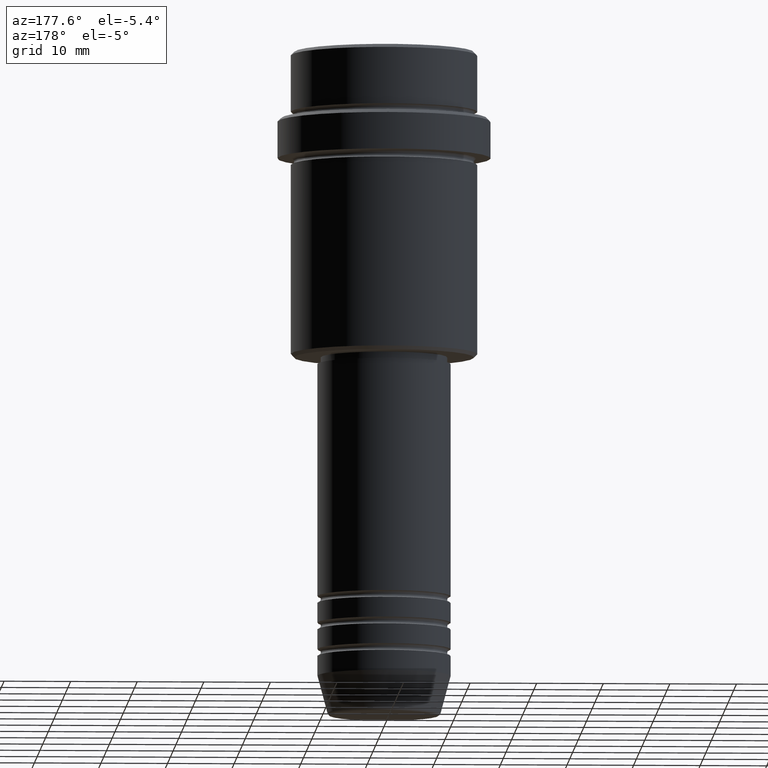
[diagram: clean part render]
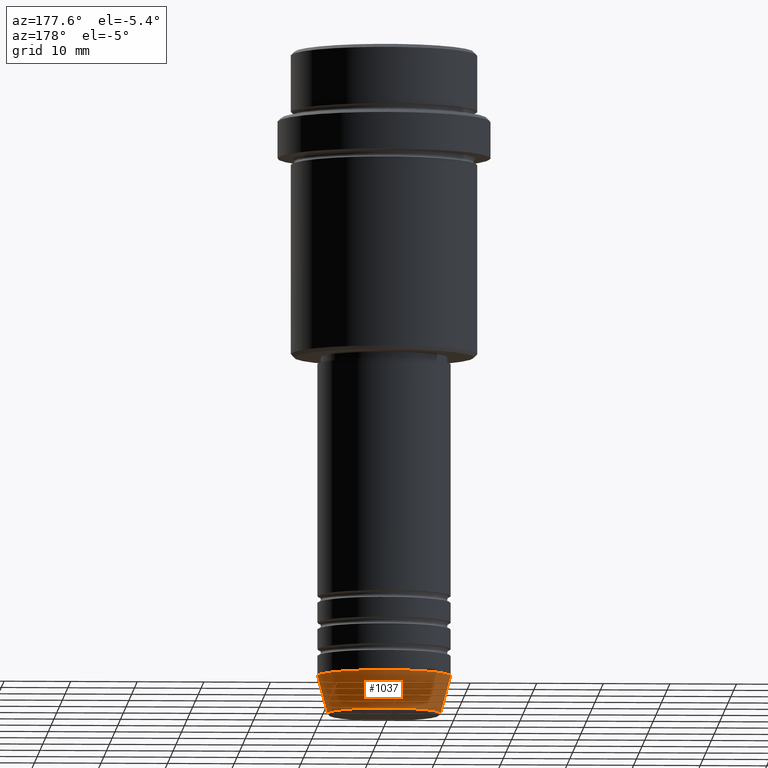
[diagram: same view with one face highlighted and labeled with its STEP entity id]
A machine part, auxiliary view. The second image highlights one B-rep face of the part: STEP entity #1037.
In plain terms, the highlighted conical surface has half-angle 15 deg.
Its self-contained STEP definition (entity closure, byte-faithful):
#58 = DIRECTION ( 'NONE',  ( 1.000000000000000000, 0.000000000000000000, 0.000000000000000000 ) ) ;
#62 = CARTESIAN_POINT ( 'NONE',  ( 0.000000000000000000, 0.000000000000000000, -94.00000000000000000 ) ) ;
#76 = CARTESIAN_POINT ( 'NONE',  ( 10.00000000000000000, 0.000000000000000000, -94.00000000000000000 ) ) ;
#160 = AXIS2_PLACEMENT_3D ( 'NONE', #62, #1065, #831 ) ;
#181 = VECTOR ( 'NONE', #728, 1000.000000000000114 ) ;
#202 = AXIS2_PLACEMENT_3D ( 'NONE', #741, #719, #286 ) ;
#286 = DIRECTION ( 'NONE',  ( 1.000000000000000000, 0.000000000000000000, 0.000000000000000000 ) ) ;
#287 = VERTEX_POINT ( 'NONE', #650 ) ;
#363 = VECTOR ( 'NONE', #1286, 1000.000000000000114 ) ;
#403 = CARTESIAN_POINT ( 'NONE',  ( 10.00000000000000000, 0.000000000000000000, -94.00000000000000000 ) ) ;
#517 = ORIENTED_EDGE ( 'NONE', *, *, #860, .T. ) ;
#527 = CONICAL_SURFACE ( 'NONE', #160, 10.00000000000000000, 0.2617993877991498519 ) ;
#589 = VERTEX_POINT ( 'NONE', #403 ) ;
#597 = CIRCLE ( 'NONE', #202, 10.00000000000000000 ) ;
#619 = EDGE_CURVE ( 'NONE', #287, #1415, #738, .T. ) ;
#626 = CARTESIAN_POINT ( 'NONE',  ( -10.00000000000000000, 1.224646799147353256E-15, -94.00000000000000000 ) ) ;
#627 = EDGE_CURVE ( 'NONE', #639, #589, #848, .T. ) ;
#628 = FACE_OUTER_BOUND ( 'NONE', #771, .T. ) ;
#639 = VERTEX_POINT ( 'NONE', #1174 ) ;
#650 = CARTESIAN_POINT ( 'NONE',  ( -8.491604264568312743, 1.132284198685156584E-15, -99.62940952255127058 ) ) ;
#710 = CIRCLE ( 'NONE', #917, 8.491604264568312743 ) ;
#719 = DIRECTION ( 'NONE',  ( -0.000000000000000000, -0.000000000000000000, 1.000000000000000000 ) ) ;
#728 = DIRECTION ( 'NONE',  ( -0.2588190451025211281, 3.169619151431769872E-17, 0.9659258262890680902 ) ) ;
#738 = LINE ( 'NONE', #863, #181 ) ;
#741 = CARTESIAN_POINT ( 'NONE',  ( 0.000000000000000000, 0.000000000000000000, -94.00000000000000000 ) ) ;
#771 = EDGE_LOOP ( 'NONE', ( #517, #1283, #1008, #1408 ) ) ;
#814 = DIRECTION ( 'NONE',  ( -0.000000000000000000, -0.000000000000000000, 1.000000000000000000 ) ) ;
#831 = DIRECTION ( 'NONE',  ( 1.000000000000000000, 0.000000000000000000, 0.000000000000000000 ) ) ;
#848 = LINE ( 'NONE', #76, #363 ) ;
#860 = EDGE_CURVE ( 'NONE', #639, #287, #710, .T. ) ;
#863 = CARTESIAN_POINT ( 'NONE',  ( -10.00000000000000000, 1.224646799147353256E-15, -94.00000000000000000 ) ) ;
#917 = AXIS2_PLACEMENT_3D ( 'NONE', #1345, #814, #58 ) ;
#1008 = ORIENTED_EDGE ( 'NONE', *, *, #1046, .F. ) ;
#1037 = ADVANCED_FACE ( 'NONE', ( #628 ), #527, .T. ) ;
#1046 = EDGE_CURVE ( 'NONE', #589, #1415, #597, .T. ) ;
#1065 = DIRECTION ( 'NONE',  ( -0.000000000000000000, -0.000000000000000000, 1.000000000000000000 ) ) ;
#1174 = CARTESIAN_POINT ( 'NONE',  ( 8.491604264568312743, 0.000000000000000000, -99.62940952255127058 ) ) ;
#1283 = ORIENTED_EDGE ( 'NONE', *, *, #619, .T. ) ;
#1286 = DIRECTION ( 'NONE',  ( 0.2588190451025211281, 0.000000000000000000, 0.9659258262890680902 ) ) ;
#1345 = CARTESIAN_POINT ( 'NONE',  ( 0.000000000000000000, 0.000000000000000000, -99.62940952255127058 ) ) ;
#1408 = ORIENTED_EDGE ( 'NONE', *, *, #627, .F. ) ;
#1415 = VERTEX_POINT ( 'NONE', #626 ) ;